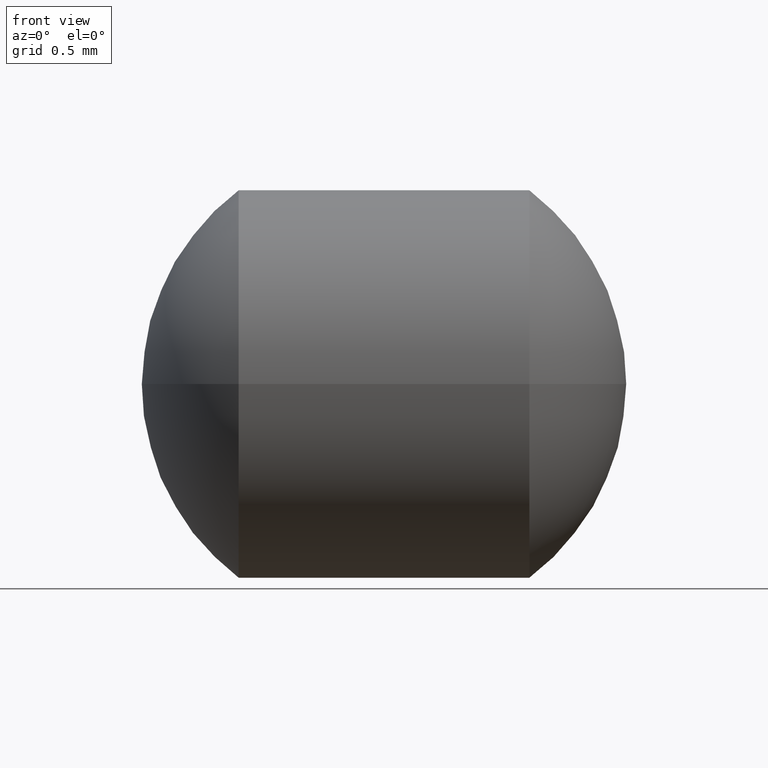
[diagram: clean part render]
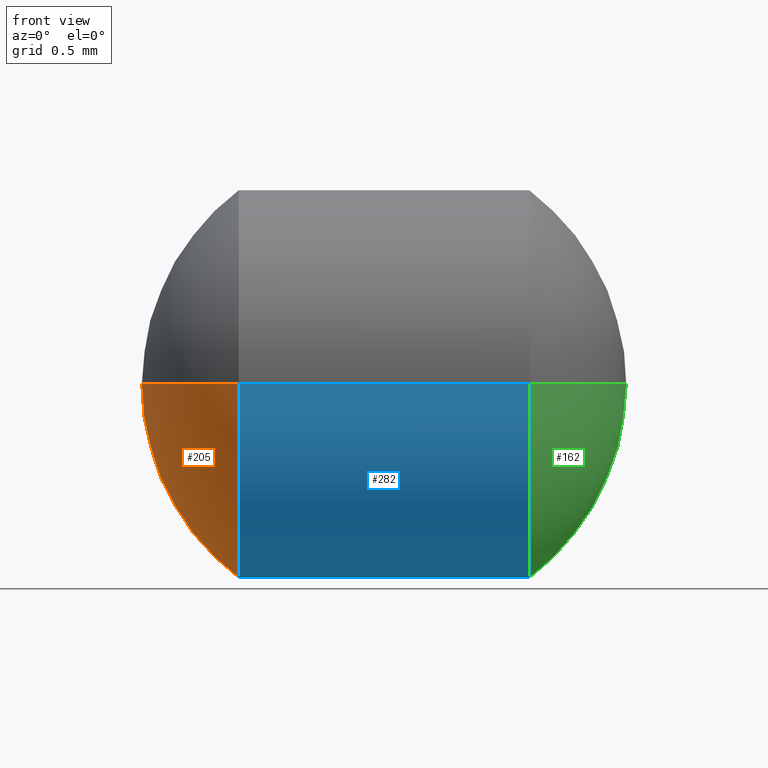
[diagram: same view with three faces highlighted in distinct colors, each labeled with its STEP entity id]
A machine part, front view with three faces highlighted in distinct colors.
Their STEP definitions:

[orange] entity #205 — the highlighted spherical surface has radius 1.25 mm.
#1 = CARTESIAN_POINT ( 'NONE',  ( 0.0000000000000000000, 0.0000000000000000000, 0.0000000000000000000 ) ) ;
#15 = VERTEX_POINT ( 'NONE', #54 ) ;
#21 = CARTESIAN_POINT ( 'NONE',  ( -0.7500000000000001100, -0.9999999999999997800, -1.224646799147353000E-016 ) ) ;
#48 = CIRCLE ( 'NONE', #284, 1.000000000000000200 ) ;
#49 = ORIENTED_EDGE ( 'NONE', *, *, #206, .F. ) ;
#54 = CARTESIAN_POINT ( 'NONE',  ( -0.7500000000000001100, 1.000000000000000000, 0.0000000000000000000 ) ) ;
#70 = FACE_OUTER_BOUND ( 'NONE', #98, .T. ) ;
#75 = DIRECTION ( 'NONE',  ( 5.128362837114822700E-033, 1.224646799147353200E-016, -1.000000000000000000 ) ) ;
#76 = SPHERICAL_SURFACE ( 'NONE', #192, 1.250000000000000000 ) ;
#89 = CARTESIAN_POINT ( 'NONE',  ( -1.250000000000000000, 1.288857505610559800E-016, 0.0000000000000000000 ) ) ;
#91 = EDGE_CURVE ( 'NONE', #15, #198, #48, .T. ) ;
#98 = EDGE_LOOP ( 'NONE', ( #243, #103, #49 ) ) ;
#99 = CARTESIAN_POINT ( 'NONE',  ( 0.0000000000000000000, 0.0000000000000000000, 0.0000000000000000000 ) ) ;
#103 = ORIENTED_EDGE ( 'NONE', *, *, #225, .T. ) ;
#105 = AXIS2_PLACEMENT_3D ( 'NONE', #214, #75, #292 ) ;
#122 = VERTEX_POINT ( 'NONE', #89 ) ;
#192 = AXIS2_PLACEMENT_3D ( 'NONE', #1, #280, #202 ) ;
#198 = VERTEX_POINT ( 'NONE', #21 ) ;
#202 = DIRECTION ( 'NONE',  ( 4.187626049147712300E-017, 1.000000000000000000, 0.0000000000000000000 ) ) ;
#205 = ADVANCED_FACE ( 'NONE', ( #70 ), #76, .T. ) ;
#206 = EDGE_CURVE ( 'NONE', #15, #122, #266, .T. ) ;
#214 = CARTESIAN_POINT ( 'NONE',  ( 0.0000000000000000000, 0.0000000000000000000, 0.0000000000000000000 ) ) ;
#225 = EDGE_CURVE ( 'NONE', #198, #122, #257, .T. ) ;
#243 = ORIENTED_EDGE ( 'NONE', *, *, #91, .T. ) ;
#246 = DIRECTION ( 'NONE',  ( 1.000000000000000000, 0.0000000000000000000, 0.0000000000000000000 ) ) ;
#248 = DIRECTION ( 'NONE',  ( 0.0000000000000000000, 0.0000000000000000000, 1.000000000000000000 ) ) ;
#255 = CARTESIAN_POINT ( 'NONE',  ( -0.7500000000000001100, 1.160500205169223100E-016, 0.0000000000000000000 ) ) ;
#257 = CIRCLE ( 'NONE', #105, 1.250000000000000000 ) ;
#266 = CIRCLE ( 'NONE', #275, 1.250000000000000000 ) ;
#275 = AXIS2_PLACEMENT_3D ( 'NONE', #99, #248, #246 ) ;
#277 = DIRECTION ( 'NONE',  ( -1.000000000000000000, 4.187626049147712300E-017, -0.0000000000000000000 ) ) ;
#280 = DIRECTION ( 'NONE',  ( 0.0000000000000000000, 0.0000000000000000000, -1.000000000000000000 ) ) ;
#284 = AXIS2_PLACEMENT_3D ( 'NONE', #255, #277, #300 ) ;
#292 = DIRECTION ( 'NONE',  ( 0.0000000000000000000, 1.000000000000000000, 1.224646799147353200E-016 ) ) ;
#300 = DIRECTION ( 'NONE',  ( 0.0000000000000000000, -1.000000000000000000, 0.0000000000000000000 ) ) ;

[blue] entity #282 — the highlighted cylindrical surface (partial cylindrical patch) has radius 1 mm, axis along (-1, 0, -0).
#5 = AXIS2_PLACEMENT_3D ( 'NONE', #298, #158, #18 ) ;
#12 = LINE ( 'NONE', #295, #23 ) ;
#14 = EDGE_LOOP ( 'NONE', ( #224, #167, #170, #268 ) ) ;
#15 = VERTEX_POINT ( 'NONE', #54 ) ;
#18 = DIRECTION ( 'NONE',  ( 0.0000000000000000000, -1.000000000000000000, 0.0000000000000000000 ) ) ;
#21 = CARTESIAN_POINT ( 'NONE',  ( -0.7500000000000001100, -0.9999999999999997800, -1.224646799147353000E-016 ) ) ;
#23 = VECTOR ( 'NONE', #24, 1000.000000000000000 ) ;
#24 = DIRECTION ( 'NONE',  ( -1.000000000000000000, 4.187626049147712300E-017, -0.0000000000000000000 ) ) ;
#28 = AXIS2_PLACEMENT_3D ( 'NONE', #272, #128, #196 ) ;
#36 = CARTESIAN_POINT ( 'NONE',  ( 0.7500000000000002200, -1.000000000000000200, 0.0000000000000000000 ) ) ;
#48 = CIRCLE ( 'NONE', #284, 1.000000000000000200 ) ;
#54 = CARTESIAN_POINT ( 'NONE',  ( -0.7500000000000001100, 1.000000000000000000, 0.0000000000000000000 ) ) ;
#91 = EDGE_CURVE ( 'NONE', #15, #198, #48, .T. ) ;
#128 = DIRECTION ( 'NONE',  ( -1.000000000000000000, 4.187626049147712300E-017, -0.0000000000000000000 ) ) ;
#134 = CARTESIAN_POINT ( 'NONE',  ( 0.7500000000000002200, 1.000000000000000200, 1.224646799147353500E-016 ) ) ;
#137 = CIRCLE ( 'NONE', #28, 1.000000000000000200 ) ;
#138 = CARTESIAN_POINT ( 'NONE',  ( -1.619607495069033800, 1.000000000000000200, 1.224646799147353200E-016 ) ) ;
#141 = VECTOR ( 'NONE', #303, 1000.000000000000000 ) ;
#149 = VERTEX_POINT ( 'NONE', #134 ) ;
#154 = EDGE_CURVE ( 'NONE', #290, #198, #12, .T. ) ;
#158 = DIRECTION ( 'NONE',  ( -1.000000000000000000, 4.187626049147712300E-017, -0.0000000000000000000 ) ) ;
#167 = ORIENTED_EDGE ( 'NONE', *, *, #218, .T. ) ;
#170 = ORIENTED_EDGE ( 'NONE', *, *, #154, .T. ) ;
#188 = FACE_OUTER_BOUND ( 'NONE', #14, .T. ) ;
#195 = LINE ( 'NONE', #138, #141 ) ;
#196 = DIRECTION ( 'NONE',  ( 0.0000000000000000000, -1.000000000000000000, 0.0000000000000000000 ) ) ;
#198 = VERTEX_POINT ( 'NONE', #21 ) ;
#201 = EDGE_CURVE ( 'NONE', #149, #15, #195, .T. ) ;
#218 = EDGE_CURVE ( 'NONE', #149, #290, #137, .T. ) ;
#224 = ORIENTED_EDGE ( 'NONE', *, *, #201, .F. ) ;
#251 = CYLINDRICAL_SURFACE ( 'NONE', #5, 1.000000000000000000 ) ;
#255 = CARTESIAN_POINT ( 'NONE',  ( -0.7500000000000001100, 1.160500205169223100E-016, 0.0000000000000000000 ) ) ;
#268 = ORIENTED_EDGE ( 'NONE', *, *, #91, .F. ) ;
#272 = CARTESIAN_POINT ( 'NONE',  ( 0.7500000000000002200, 5.323562977970660000E-017, 0.0000000000000000000 ) ) ;
#277 = DIRECTION ( 'NONE',  ( -1.000000000000000000, 4.187626049147712300E-017, -0.0000000000000000000 ) ) ;
#282 = ADVANCED_FACE ( 'NONE', ( #188 ), #251, .T. ) ;
#284 = AXIS2_PLACEMENT_3D ( 'NONE', #255, #277, #300 ) ;
#290 = VERTEX_POINT ( 'NONE', #36 ) ;
#295 = CARTESIAN_POINT ( 'NONE',  ( -1.619607495069033800, -0.9999999999999997800, 0.0000000000000000000 ) ) ;
#298 = CARTESIAN_POINT ( 'NONE',  ( -1.619607495069033800, 1.524659305057740600E-016, 0.0000000000000000000 ) ) ;
#300 = DIRECTION ( 'NONE',  ( 0.0000000000000000000, -1.000000000000000000, 0.0000000000000000000 ) ) ;
#303 = DIRECTION ( 'NONE',  ( -1.000000000000000000, 4.187626049147712300E-017, -0.0000000000000000000 ) ) ;

[green] entity #162 — the highlighted spherical surface has radius 1.25 mm.
#26 = EDGE_CURVE ( 'NONE', #296, #290, #121, .T. ) ;
#28 = AXIS2_PLACEMENT_3D ( 'NONE', #272, #128, #196 ) ;
#36 = CARTESIAN_POINT ( 'NONE',  ( 0.7500000000000002200, -1.000000000000000200, 0.0000000000000000000 ) ) ;
#37 = AXIS2_PLACEMENT_3D ( 'NONE', #157, #140, #179 ) ;
#55 = ORIENTED_EDGE ( 'NONE', *, *, #108, .F. ) ;
#102 = CARTESIAN_POINT ( 'NONE',  ( 0.0000000000000000000, 0.0000000000000000000, 0.0000000000000000000 ) ) ;
#108 = EDGE_CURVE ( 'NONE', #296, #149, #163, .T. ) ;
#109 = CARTESIAN_POINT ( 'NONE',  ( 1.250000000000000000, -1.288857505610559800E-016, 0.0000000000000000000 ) ) ;
#121 = CIRCLE ( 'NONE', #238, 1.250000000000000000 ) ;
#127 = SPHERICAL_SURFACE ( 'NONE', #37, 1.250000000000000000 ) ;
#128 = DIRECTION ( 'NONE',  ( -1.000000000000000000, 4.187626049147712300E-017, -0.0000000000000000000 ) ) ;
#130 = DIRECTION ( 'NONE',  ( 0.0000000000000000000, -0.0000000000000000000, -1.000000000000000000 ) ) ;
#134 = CARTESIAN_POINT ( 'NONE',  ( 0.7500000000000002200, 1.000000000000000200, 1.224646799147353500E-016 ) ) ;
#137 = CIRCLE ( 'NONE', #28, 1.000000000000000200 ) ;
#140 = DIRECTION ( 'NONE',  ( 0.0000000000000000000, 0.0000000000000000000, 1.000000000000000000 ) ) ;
#146 = FACE_OUTER_BOUND ( 'NONE', #159, .T. ) ;
#149 = VERTEX_POINT ( 'NONE', #134 ) ;
#151 = DIRECTION ( 'NONE',  ( -5.128362837114822700E-033, -1.224646799147353200E-016, 1.000000000000000000 ) ) ;
#157 = CARTESIAN_POINT ( 'NONE',  ( 0.0000000000000000000, 0.0000000000000000000, 0.0000000000000000000 ) ) ;
#159 = EDGE_LOOP ( 'NONE', ( #55, #219, #173 ) ) ;
#162 = ADVANCED_FACE ( 'NONE', ( #146 ), #127, .T. ) ;
#163 = CIRCLE ( 'NONE', #305, 1.250000000000000000 ) ;
#173 = ORIENTED_EDGE ( 'NONE', *, *, #218, .F. ) ;
#177 = DIRECTION ( 'NONE',  ( 0.0000000000000000000, -1.000000000000000000, -1.224646799147353200E-016 ) ) ;
#179 = DIRECTION ( 'NONE',  ( -4.187626049147712300E-017, -1.000000000000000000, 0.0000000000000000000 ) ) ;
#196 = DIRECTION ( 'NONE',  ( 0.0000000000000000000, -1.000000000000000000, 0.0000000000000000000 ) ) ;
#218 = EDGE_CURVE ( 'NONE', #149, #290, #137, .T. ) ;
#219 = ORIENTED_EDGE ( 'NONE', *, *, #26, .T. ) ;
#238 = AXIS2_PLACEMENT_3D ( 'NONE', #102, #130, #274 ) ;
#272 = CARTESIAN_POINT ( 'NONE',  ( 0.7500000000000002200, 5.323562977970660000E-017, 0.0000000000000000000 ) ) ;
#274 = DIRECTION ( 'NONE',  ( -1.000000000000000000, 0.0000000000000000000, 0.0000000000000000000 ) ) ;
#290 = VERTEX_POINT ( 'NONE', #36 ) ;
#296 = VERTEX_POINT ( 'NONE', #109 ) ;
#297 = CARTESIAN_POINT ( 'NONE',  ( 0.0000000000000000000, 0.0000000000000000000, 0.0000000000000000000 ) ) ;
#305 = AXIS2_PLACEMENT_3D ( 'NONE', #297, #151, #177 ) ;